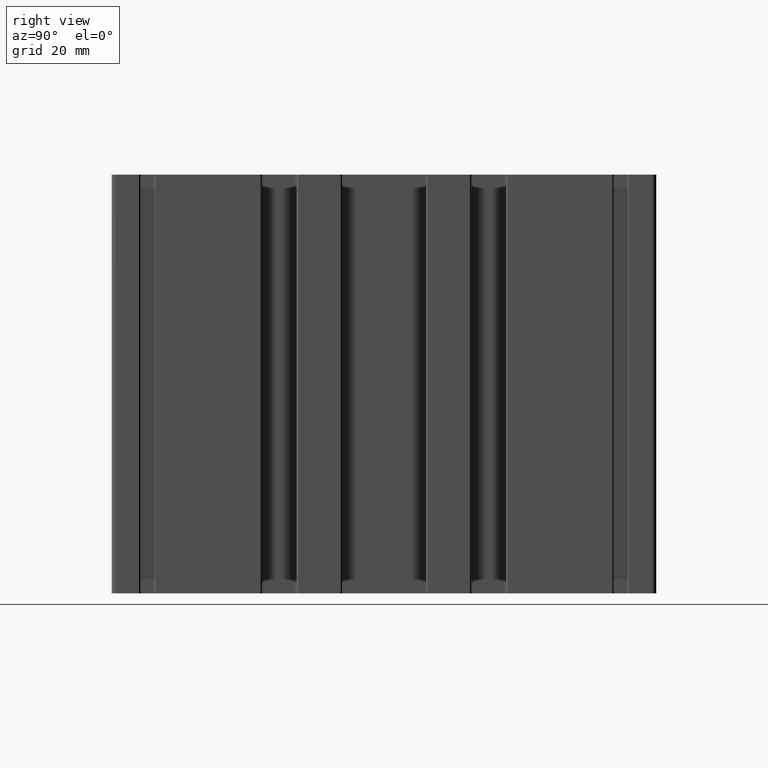
[diagram: clean part render]
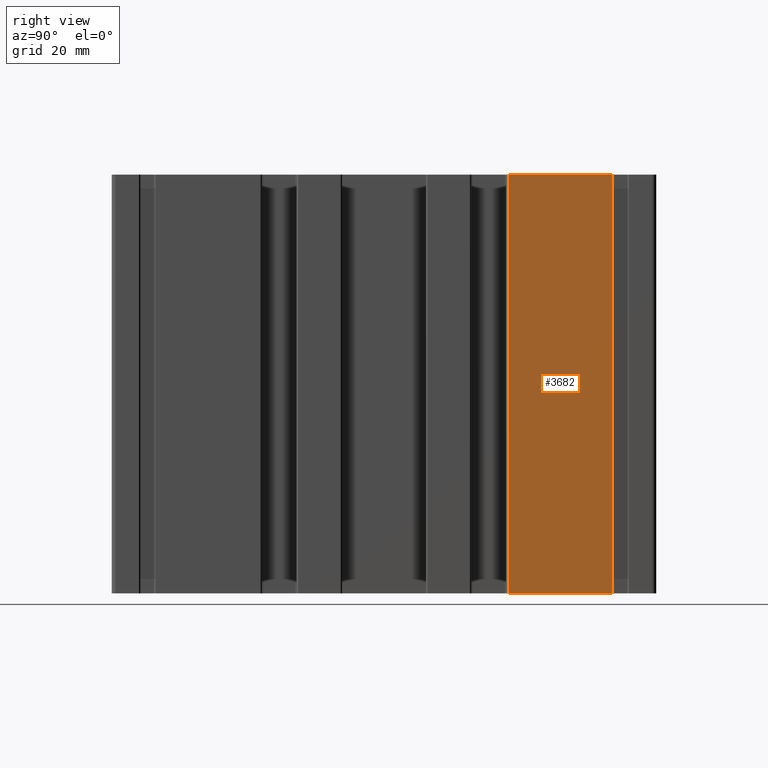
[diagram: same view with one face highlighted and labeled with its STEP entity id]
A machine part, right view. The second image highlights one B-rep face of the part: STEP entity #3682.
In plain terms, the highlighted planar face has unit normal (1, 0, 0).
Its self-contained STEP definition (entity closure, byte-faithful):
#73=PLANE('',#3989);
#218=FACE_OUTER_BOUND('',#415,.T.);
#415=EDGE_LOOP('',(#2905,#2906,#2907,#2908));
#791=LINE('',#5563,#1187);
#914=LINE('',#5920,#1310);
#915=LINE('',#5923,#1311);
#916=LINE('',#5924,#1312);
#1187=VECTOR('',#4451,24.8500000000005);
#1310=VECTOR('',#4758,100.);
#1311=VECTOR('',#4761,24.8500000000005);
#1312=VECTOR('',#4762,100.);
#1604=VERTEX_POINT('',#5560);
#1605=VERTEX_POINT('',#5562);
#1747=VERTEX_POINT('',#5918);
#1748=VERTEX_POINT('',#5922);
#2016=EDGE_CURVE('',#1604,#1605,#791,.T.);
#2195=EDGE_CURVE('',#1604,#1747,#914,.T.);
#2196=EDGE_CURVE('',#1748,#1747,#915,.T.);
#2197=EDGE_CURVE('',#1605,#1748,#916,.T.);
#2905=ORIENTED_EDGE('',*,*,#2195,.T.);
#2906=ORIENTED_EDGE('',*,*,#2196,.F.);
#2907=ORIENTED_EDGE('',*,*,#2197,.F.);
#2908=ORIENTED_EDGE('',*,*,#2016,.F.);
#3682=ADVANCED_FACE('',(#218),#73,.T.);
#3989=AXIS2_PLACEMENT_3D('',#5921,#4759,#4760);
#4451=DIRECTION('',(0.,-1.,0.));
#4758=DIRECTION('',(0.,0.,1.));
#4759=DIRECTION('center_axis',(1.,0.,0.));
#4760=DIRECTION('ref_axis',(0.,1.,0.));
#4761=DIRECTION('',(0.,1.,0.));
#4762=DIRECTION('',(0.,0.,1.));
#5560=CARTESIAN_POINT('',(29.9999999999963,54.5000000000005,-50.));
#5562=CARTESIAN_POINT('',(29.9999999999963,29.65,-50.));
#5563=CARTESIAN_POINT('',(29.9999999999963,29.65,-50.));
#5918=CARTESIAN_POINT('',(29.9999999999963,54.5000000000005,50.));
#5920=CARTESIAN_POINT('',(29.9999999999963,54.5000000000005,0.));
#5921=CARTESIAN_POINT('Origin',(29.9999999999963,29.65,0.));
#5922=CARTESIAN_POINT('',(29.9999999999963,29.65,50.));
#5923=CARTESIAN_POINT('',(29.9999999999963,29.65,50.));
#5924=CARTESIAN_POINT('',(29.9999999999963,29.65,0.));